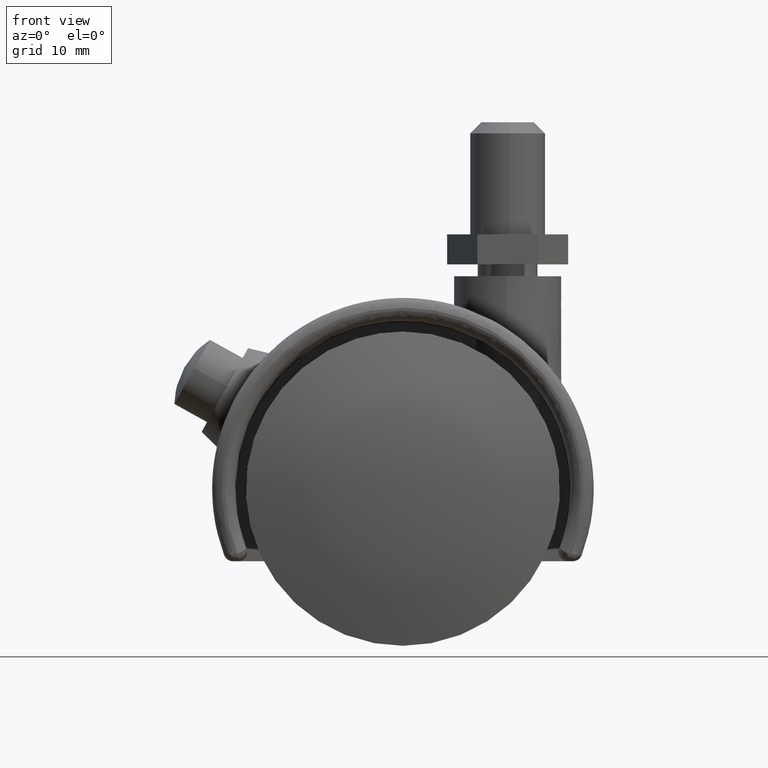
[diagram: clean part render]
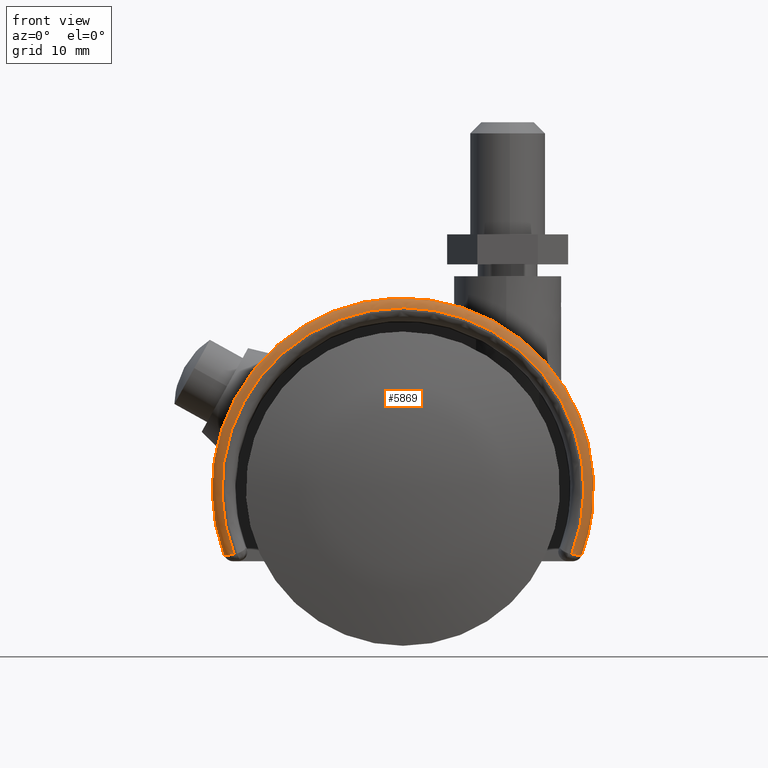
[diagram: same view with one face highlighted and labeled with its STEP entity id]
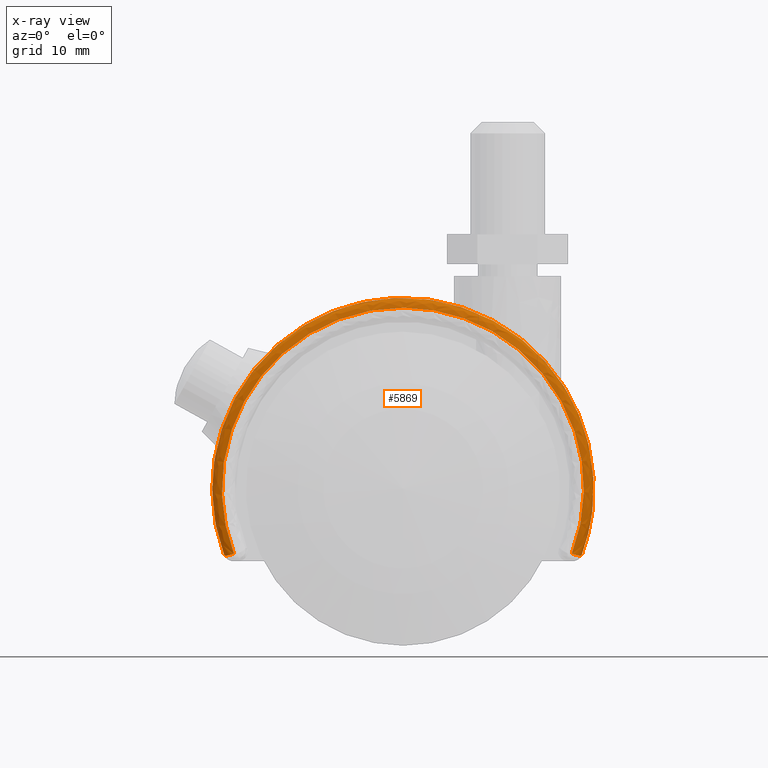
[diagram: x-ray of the same camera — body ghosted, the highlighted face saturated]
A machine part, front view. The second image highlights one B-rep face of the part: STEP entity #5869.
The next image is the same camera in x-ray: the body ghosted, the highlighted face saturated — about 0% of this face is hidden behind the body in this view.
In plain terms, the highlighted face is a freeform B-spline surface patch.
Its self-contained STEP definition (entity closure, byte-faithful):
#5510=CARTESIAN_POINT('',(23.914548033457500,-15.0,-8.851239650775209));
#5511=VERTEX_POINT('',#5510);
#5567=CARTESIAN_POINT('',(-23.914548033457500,-15.0,-8.851239650775209));
#5568=VERTEX_POINT('',#5567);
#5650=CARTESIAN_POINT('',(23.024553120455000,-16.216538005780500,-8.826186470029111));
#5651=VERTEX_POINT('',#5650);
#5652=CARTESIAN_POINT('',(23.914548033457500,-15.0,-8.851239650775209));
#5653=CARTESIAN_POINT('',(23.909070118913942,-15.065301670641560,-8.866040046611706));
#5654=CARTESIAN_POINT('',(23.899021378001031,-15.130135454881311,-8.879028013427417));
#5655=CARTESIAN_POINT('',(23.870005017439361,-15.258545084650359,-8.901328689078706));
#5656=CARTESIAN_POINT('',(23.850881598157049,-15.322527085869281,-8.910687823073811));
#5657=CARTESIAN_POINT('',(23.804205775009208,-15.447059218660719,-8.925306664853041));
#5658=CARTESIAN_POINT('',(23.776697452965330,-15.507692161747780,-8.930604514727332));
#5659=CARTESIAN_POINT('',(23.729089412802448,-15.596159286429749,-8.935462631661054));
#5660=CARTESIAN_POINT('',(23.712160556470991,-15.625206133134190,-8.936559102661365));
#5661=CARTESIAN_POINT('',(23.676667285437190,-15.681640705991450,-8.937685626111163));
#5662=CARTESIAN_POINT('',(23.658047385943409,-15.709135992087671,-8.937722511852446));
#5663=CARTESIAN_POINT('',(23.599605302807198,-15.789486583957601,-8.936272380125201));
#5664=CARTESIAN_POINT('',(23.557215626066061,-15.840218916735880,-8.933233142991865));
#5665=CARTESIAN_POINT('',(23.465421878402228,-15.935883090111680,-8.922902508795955));
#5666=CARTESIAN_POINT('',(23.415623784228011,-15.981058902313540,-8.915522703920368));
#5667=CARTESIAN_POINT('',(23.311816991032590,-16.062591483383770,-8.896804909984756));
#5668=CARTESIAN_POINT('',(23.257571299833899,-16.099283731780471,-8.885463605875174));
#5669=CARTESIAN_POINT('',(23.144334935794522,-16.164421808712021,-8.858786791662459));
#5670=CARTESIAN_POINT('',(23.085114278170369,-16.192917089607501,-8.843375410578576));
#5671=CARTESIAN_POINT('',(23.024553120455000,-16.216538005780500,-8.826186470029111));
#5672=B_SPLINE_CURVE_WITH_KNOTS('',3,(#5652,#5653,#5654,#5655,#5656,#5657,#5658,#5659,#5660,#5661,#5662,#5663,#5664,#5665,#5666,#5667,#5668,#5669,#5670,#5671),.UNSPECIFIED.,.F.,.U.,(4,2,2,2,2,2,2,2,2,4),(0.0,0.125000000000004,0.250000000000007,0.375000000000011,0.437500000000011,0.500000000000012,0.625000000000009,0.750000000000006,0.875000000000003,1.0),.UNSPECIFIED.);
#5673=EDGE_CURVE('',#5511,#5651,#5672,.T.);
#5736=CARTESIAN_POINT('',(-23.024553120455000,-16.216538005780500,-8.826186470029111));
#5737=VERTEX_POINT('',#5736);
#5751=CARTESIAN_POINT('',(-23.024553120455000,-16.216538005780500,-8.826186470029111));
#5752=CARTESIAN_POINT('',(-23.085108833177170,-16.192919213340481,-8.843373865138098));
#5753=CARTESIAN_POINT('',(-23.144335105038738,-16.164423467715920,-8.858787291604479));
#5754=CARTESIAN_POINT('',(-23.257625159590859,-16.099250992300739,-8.885475834146734));
#5755=CARTESIAN_POINT('',(-23.311884497500220,-16.062543866472350,-8.896818507428657));
#5756=CARTESIAN_POINT('',(-23.415697824167999,-15.980995337586140,-8.915534627298094));
#5757=CARTESIAN_POINT('',(-23.465486061204960,-15.935821699112900,-8.922911183652794));
#5758=CARTESIAN_POINT('',(-23.557266339017801,-15.840160560585950,-8.933237396892713));
#5759=CARTESIAN_POINT('',(-23.599649940470741,-15.789430290756449,-8.936274824361457));
#5760=CARTESIAN_POINT('',(-23.658083734399298,-15.709083474642670,-8.937722744447113));
#5761=CARTESIAN_POINT('',(-23.676701009541912,-15.681589561868570,-8.937685206129393));
#5762=CARTESIAN_POINT('',(-23.712189296462171,-15.625157954501869,-8.936557538944664));
#5763=CARTESIAN_POINT('',(-23.729115791296429,-15.596112678888650,-8.935460570605743));
#5764=CARTESIAN_POINT('',(-23.776716681973369,-15.507651604162209,-8.930601289664052));
#5765=CARTESIAN_POINT('',(-23.804220984510369,-15.447022986143010,-8.925303031346585));
#5766=CARTESIAN_POINT('',(-23.850890109675881,-15.322500027969181,-8.910684026595311));
#5767=CARTESIAN_POINT('',(-23.870010773034529,-15.258523161890979,-8.901325182908289));
#5768=CARTESIAN_POINT('',(-23.899023177871559,-15.130123940595309,-8.879025712566211));
#5769=CARTESIAN_POINT('',(-23.909071195735422,-15.065288833951101,-8.866037137222733));
#5770=CARTESIAN_POINT('',(-23.914548033457500,-15.0,-8.851239650775209));
#5771=B_SPLINE_CURVE_WITH_KNOTS('',3,(#5751,#5752,#5753,#5754,#5755,#5756,#5757,#5758,#5759,#5760,#5761,#5762,#5763,#5764,#5765,#5766,#5767,#5768,#5769,#5770),.UNSPECIFIED.,.F.,.U.,(4,2,2,2,2,2,2,2,2,4),(0.0,0.125000000000002,0.250000000000003,0.375000000000005,0.500000000000006,0.562500000000004,0.625000000000002,0.750000000000002,0.875000000000001,1.0),.UNSPECIFIED.);
#5772=EDGE_CURVE('',#5737,#5568,#5771,.T.);
#5778=CARTESIAN_POINT('',(-21.294865863721714,-16.296853139911125,-11.304937356410434));
#5779=CARTESIAN_POINT('',(-30.554745807673676,-16.296853139911128,6.137698113728571));
#5780=CARTESIAN_POINT('',(-15.277372903836836,-16.296853139911125,18.651402036934819));
#5781=CARTESIAN_POINT('',(0.0,-16.296853139911128,31.165105960141045));
#5782=CARTESIAN_POINT('',(15.277372903836836,-16.296853139911125,18.651402036934819));
#5783=CARTESIAN_POINT('',(30.554745807673676,-16.296853139911128,6.137698113728571));
#5784=CARTESIAN_POINT('',(21.294865863721714,-16.296853139911125,-11.304937356410434));
#5785=CARTESIAN_POINT('',(-22.611969445501764,-16.400798876660673,-12.004156293933482));
#5786=CARTESIAN_POINT('',(-32.444579977149516,-16.400798876660673,6.517319390575803));
#5787=CARTESIAN_POINT('',(-16.222289988574758,-16.400798876660673,19.805005378945872));
#5788=CARTESIAN_POINT('',(0.0,-16.400798876660673,33.092691367315936));
#5789=CARTESIAN_POINT('',(16.222289988574758,-16.400798876660673,19.805005378945872));
#5790=CARTESIAN_POINT('',(32.444579977149516,-16.400798876660673,6.517319390575803));
#5791=CARTESIAN_POINT('',(22.611969445501764,-16.400798876660673,-12.004156293933482));
#5792=CARTESIAN_POINT('',(-22.520159553137912,-14.909601682939735,-11.955416607639416));
#5793=CARTESIAN_POINT('',(-32.312847382928950,-14.909601682939742,6.490857547294452));
#5794=CARTESIAN_POINT('',(-16.156423691464472,-14.909601682939735,19.724592418169113));
#5795=CARTESIAN_POINT('',(0.0,-14.909601682939742,32.958327289043773));
#5796=CARTESIAN_POINT('',(16.156423691464472,-14.909601682939735,19.724592418169113));
#5797=CARTESIAN_POINT('',(32.312847382928950,-14.909601682939742,6.490857547294452));
#5798=CARTESIAN_POINT('',(22.520159553137912,-14.909601682939735,-11.955416607639416));
#5806=(BOUNDED_SURFACE()B_SPLINE_SURFACE(2,2,((#5778,#5785,#5792),(#5779,#5786,#5793),(#5780,#5787,#5794),(#5781,#5788,#5795),(#5782,#5789,#5796),(#5783,#5790,#5797),(#5784,#5791,#5798)),.UNSPECIFIED.,.F.,.F.,.U.)B_SPLINE_SURFACE_WITH_KNOTS((3,2,2,3),(3,3),(0.0,36.437399495048489,72.874798990096977,109.312198485145500),(0.0,2.369086787920967),.UNSPECIFIED.)GEOMETRIC_REPRESENTATION_ITEM()RATIONAL_B_SPLINE_SURFACE(((0.919258322177741,0.603240066532360,0.919258183254520),(0.711146387359950,0.466671863257080,0.711146279887714),(0.919258322177741,0.603240066532360,0.919258183254520),(0.711146387359950,0.466671863257080,0.711146279887714),(0.919258322177741,0.603240066532360,0.919258183254520),(0.711146387359950,0.466671863257080,0.711146279887714),(0.919258322177741,0.603240066532360,0.919258183254520)))REPRESENTATION_ITEM('')SURFACE());
#5807=ORIENTED_EDGE('',*,*,#5772,.F.);
#5808=CARTESIAN_POINT('',(-22.582073607177900,-16.300000000000001,-8.699999999999999));
#5809=VERTEX_POINT('',#5808);
#5810=CARTESIAN_POINT('',(-23.024553120455000,-16.216538005780500,-8.826186470029111));
#5811=CARTESIAN_POINT('',(-22.953229948573540,-16.244356474379192,-8.805942970606075));
#5812=CARTESIAN_POINT('',(-22.880600030398529,-16.265068064880580,-8.785282118843817));
#5813=CARTESIAN_POINT('',(-22.733104328169180,-16.292881807160050,-8.743222709311633));
#5814=CARTESIAN_POINT('',(-22.658196642135660,-16.299999999999990,-8.721812312608527));
#5815=CARTESIAN_POINT('',(-22.582073607177950,-16.300000000000001,-8.699999999999999));
#5816=B_SPLINE_CURVE_WITH_KNOTS('',3,(#5810,#5811,#5812,#5813,#5814,#5815),.UNSPECIFIED.,.F.,.U.,(4,2,4),(0.0,0.500000000000000,1.0),.UNSPECIFIED.);
#5817=EDGE_CURVE('',#5737,#5809,#5816,.T.);
#5818=ORIENTED_EDGE('',*,*,#5817,.T.);
#5819=CARTESIAN_POINT('',(22.582073607177900,-16.300000000000001,-8.699999999999999));
#5820=VERTEX_POINT('',#5819);
#5821=CARTESIAN_POINT('',(22.582073607177911,-16.300000000000001,-8.699999999999992));
#5822=CARTESIAN_POINT('',(29.143530223659603,-16.299999999999997,8.331183480884402));
#5823=CARTESIAN_POINT('',(14.571765111829800,-16.300000000000001,19.321069067876682));
#5824=CARTESIAN_POINT('',(-8.673617E-015,-16.299999999999997,30.310954654868947));
#5825=CARTESIAN_POINT('',(-14.571765111829810,-16.300000000000001,19.321069067876671));
#5826=CARTESIAN_POINT('',(-29.143530223659624,-16.299999999999997,8.331183480884379));
#5827=CARTESIAN_POINT('',(-22.582073607177900,-16.300000000000001,-8.700000000000022));
#5835=(BOUNDED_CURVE()B_SPLINE_CURVE(2,(#5821,#5822,#5823,#5824,#5825,#5826,#5827),.UNSPECIFIED.,.F.,.U.)B_SPLINE_CURVE_WITH_KNOTS((3,2,2,3),(0.0,0.333333333333333,0.666666666666667,1.0),.UNSPECIFIED.)CURVE()GEOMETRIC_REPRESENTATION_ITEM()RATIONAL_B_SPLINE_CURVE((1.0,0.798391250805183,1.0,0.798391250805183,1.0,0.798391250805183,1.0))REPRESENTATION_ITEM(''));
#5836=EDGE_CURVE('',#5820,#5809,#5835,.T.);
#5837=ORIENTED_EDGE('',*,*,#5836,.F.);
#5838=CARTESIAN_POINT('',(22.582073607177900,-16.300000000000001,-8.699999999999999));
#5839=CARTESIAN_POINT('',(22.657622712219649,-16.300000000000001,-8.721647858593398));
#5840=CARTESIAN_POINT('',(22.732470257989458,-16.292986528356259,-8.743041794795511));
#5841=CARTESIAN_POINT('',(22.843696928894119,-16.272034391380782,-8.774758999025929));
#5842=CARTESIAN_POINT('',(22.880610345885358,-16.263285347041069,-8.785272435972566));
#5843=CARTESIAN_POINT('',(22.953292044252251,-16.242446875816299,-8.805949171634701));
#5844=CARTESIAN_POINT('',(22.989160770244741,-16.230342228966119,-8.816141136904401));
#5845=CARTESIAN_POINT('',(23.024553120455000,-16.216538005780500,-8.826186470029121));
#5846=B_SPLINE_CURVE_WITH_KNOTS('',3,(#5838,#5839,#5840,#5841,#5842,#5843,#5844,#5845),.UNSPECIFIED.,.F.,.U.,(4,2,2,4),(0.0,0.499999999999997,0.749999999999998,1.0),.UNSPECIFIED.);
#5847=EDGE_CURVE('',#5820,#5651,#5846,.T.);
#5848=ORIENTED_EDGE('',*,*,#5847,.T.);
#5849=ORIENTED_EDGE('',*,*,#5673,.F.);
#5850=CARTESIAN_POINT('',(-23.914548033457489,-15.0,-8.851239650775225));
#5851=CARTESIAN_POINT('',(-30.528935571366613,-15.000000000000002,9.019713427913166));
#5852=CARTESIAN_POINT('',(-15.264467785683300,-15.0,20.426602121249580));
#5853=CARTESIAN_POINT('',(6.938894E-015,-15.000000000000002,31.833490814585996));
#5854=CARTESIAN_POINT('',(15.264467785683310,-15.0,20.426602121249569));
#5855=CARTESIAN_POINT('',(30.528935571366606,-15.000000000000002,9.019713427913166));
#5856=CARTESIAN_POINT('',(23.914548033457489,-15.0,-8.851239650775215));
#5864=(BOUNDED_CURVE()B_SPLINE_CURVE(2,(#5850,#5851,#5852,#5853,#5854,#5855,#5856),.UNSPECIFIED.,.F.,.U.)B_SPLINE_CURVE_WITH_KNOTS((3,2,2,3),(0.0,0.333333333333333,0.666666666666667,1.0),.UNSPECIFIED.)CURVE()GEOMETRIC_REPRESENTATION_ITEM()RATIONAL_B_SPLINE_CURVE((1.0,0.801043189027701,1.0,0.801043189027701,1.0,0.801043189027701,1.0))REPRESENTATION_ITEM(''));
#5865=EDGE_CURVE('',#5568,#5511,#5864,.T.);
#5866=ORIENTED_EDGE('',*,*,#5865,.F.);
#5867=EDGE_LOOP('',(#5807,#5818,#5837,#5848,#5849,#5866));
#5868=FACE_OUTER_BOUND('',#5867,.T.);
#5869=ADVANCED_FACE('',(#5868),#5806,.T.);